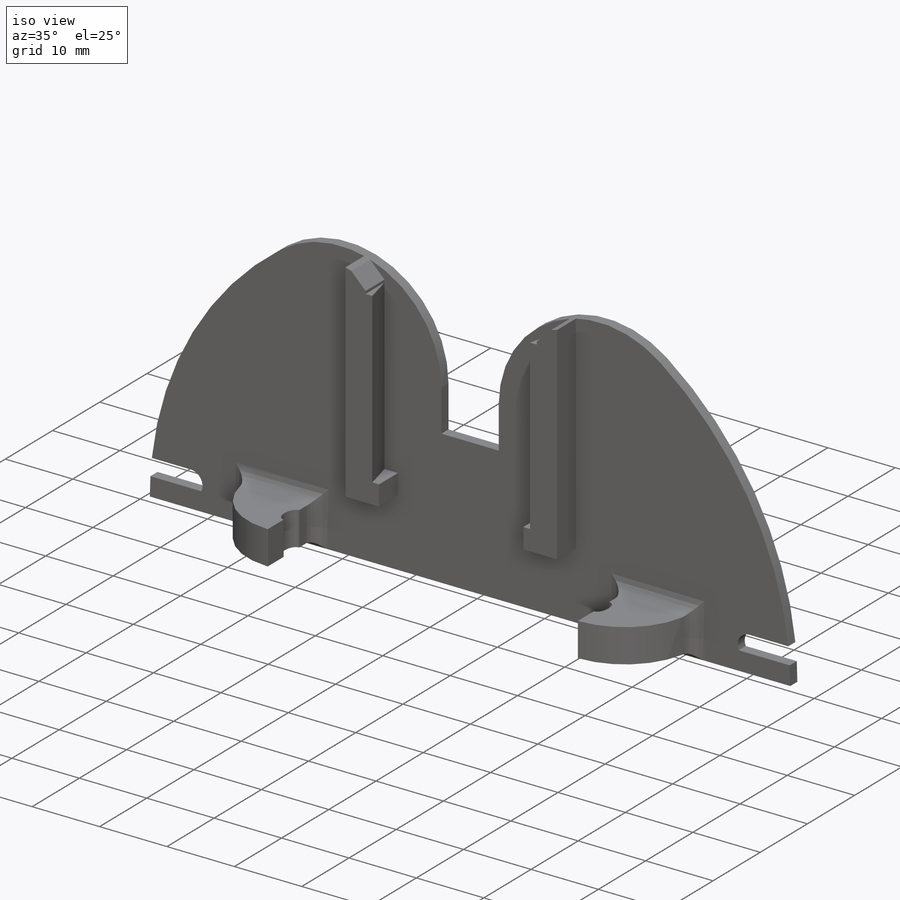
[diagram: iso view]
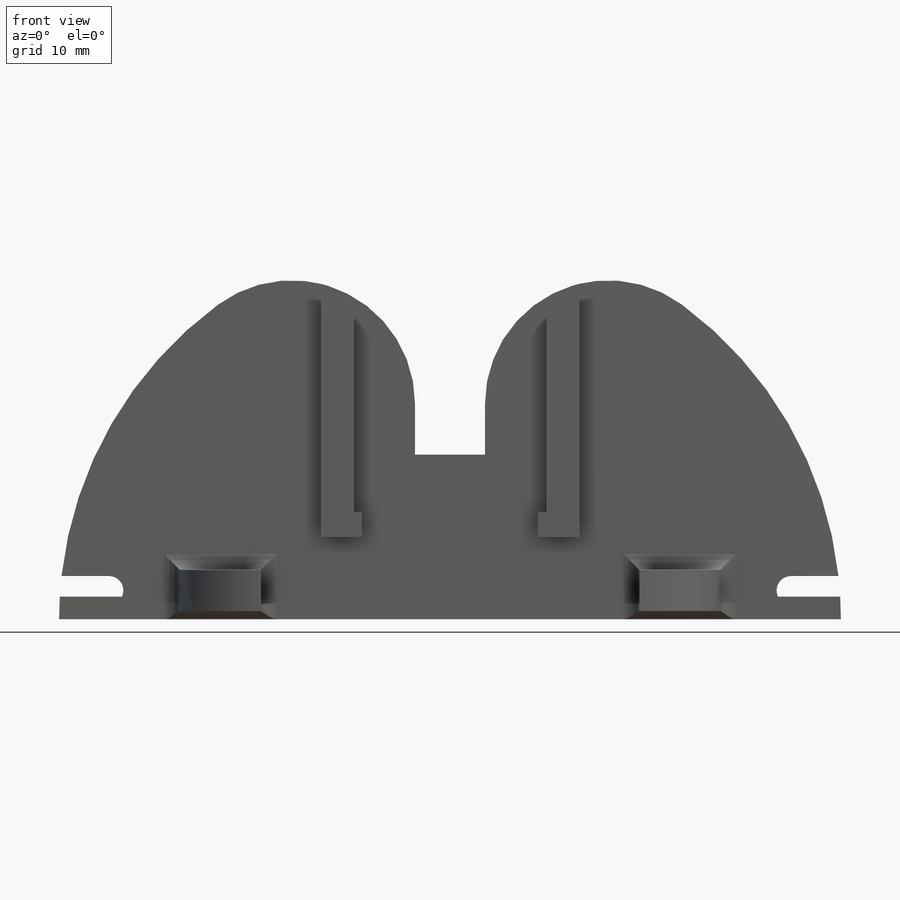
[diagram: front view]
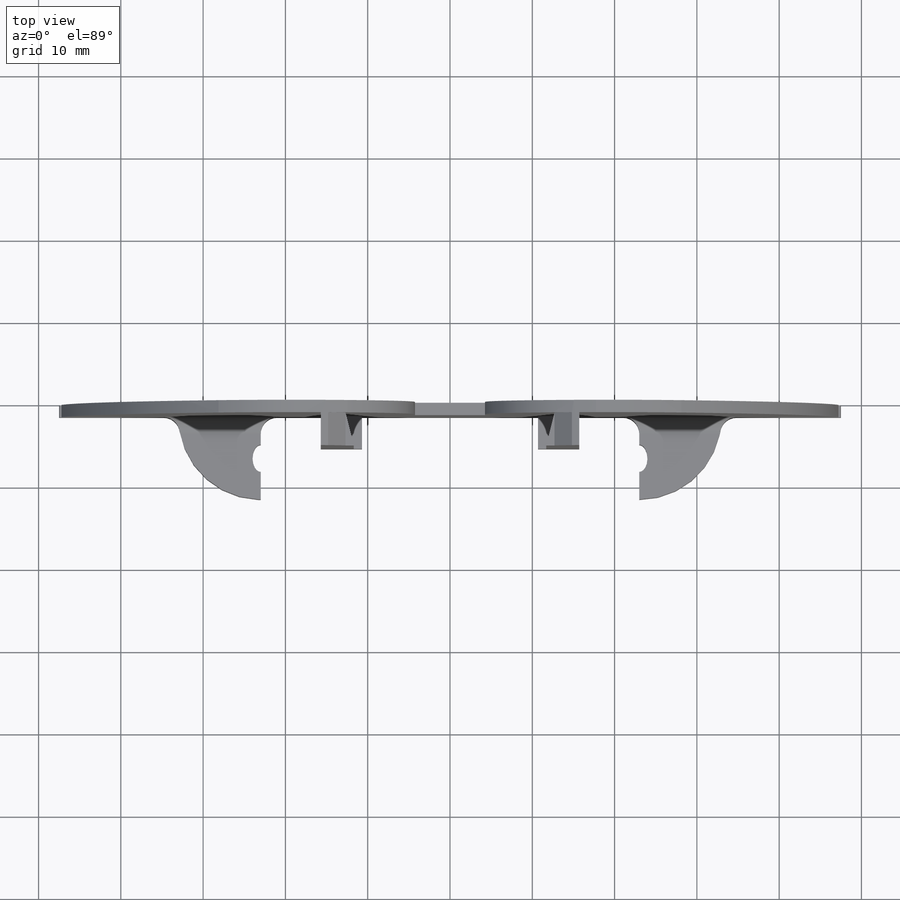
[diagram: top view]
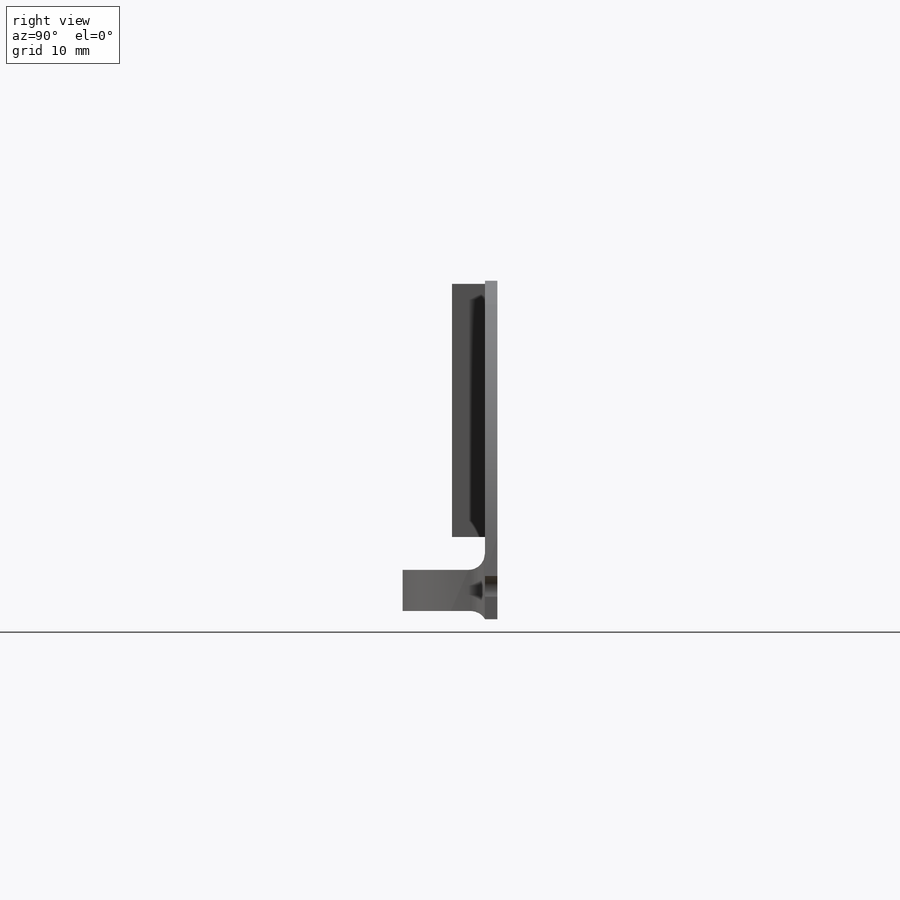
[diagram: right view]
SOLIDWORKS PART (.sldprt)
format: sldprt  version: not decoded by parser v0  size: 339,456 bytes
history: native  units: mm
features: sketch x8, extrude x4, cut_extrude x4, material x1, fillet x1 (+11 scaffold rows collapsed)
feature tree (29):
  scaffold x11  (default folders/planes/origin — collapsed)
  material  "Material <not specified>"
  sketch  "Sketch1"  dims[D1=95.0mm]
  extrude  "Boss-Extrude1"  Depth=1.5mm
  sketch  "Sketch2"  dims[D1=8.5mm D2=20.0mm]
  cut_extrude  "Cut-Extrude1"  Depth=1.5mm
  sketch  "Sketch3"  dims[c1.D1=25.4mm c1.D2=25.4mm c1.D3=25.4mm c1.D4=7.0mm c1.D5=2.0mm c1.D6=2.0mm c2.D3=3.0mm]
  extrude  "Boss-Extrude2"  Depth=4mm
  sketch  "Sketch4"  dims[c1.D1=16.0mm c1.D2=10.0mm c2.D1=46.0mm c2.D3=5.0mm c2.D4=1.0mm]
  extrude  "Boss-Extrude3"  Depth=10mm
  sketch  "Sketch6"  dims[c1.D1=3.5mm c1.D3=3.5mm c1.D2=90.0mm c2.D2=30.0deg c2.D4=~11.89558mm c3.D4=30.0deg]
  cut_extrude  "Cut-Extrude3"  Depth=10mm
  sketch  "Sketch7"  dims[D1=5.0mm D2=1.0mm]
  cut_extrude  "Cut-Extrude4"  Depth=10mm
  sketch  "Sketch8"  dims[D1=1.0mm D2=1.0mm]
  extrude  "Boss-Extrude4"  Depth=25mm
  sketch  "Sketch9"  dims[D1=30.0mm]
  cut_extrude  "Cut-Extrude5"  Depth=25mm
  fillet  "Fillet2"  Radius=2mm
decode coverage: 17 of 17 modeling features carry decoded parameters
note: ~ marks probable driven/reference dimensions
note: suppression state not decoded; provenance and decode notes live in map.json
